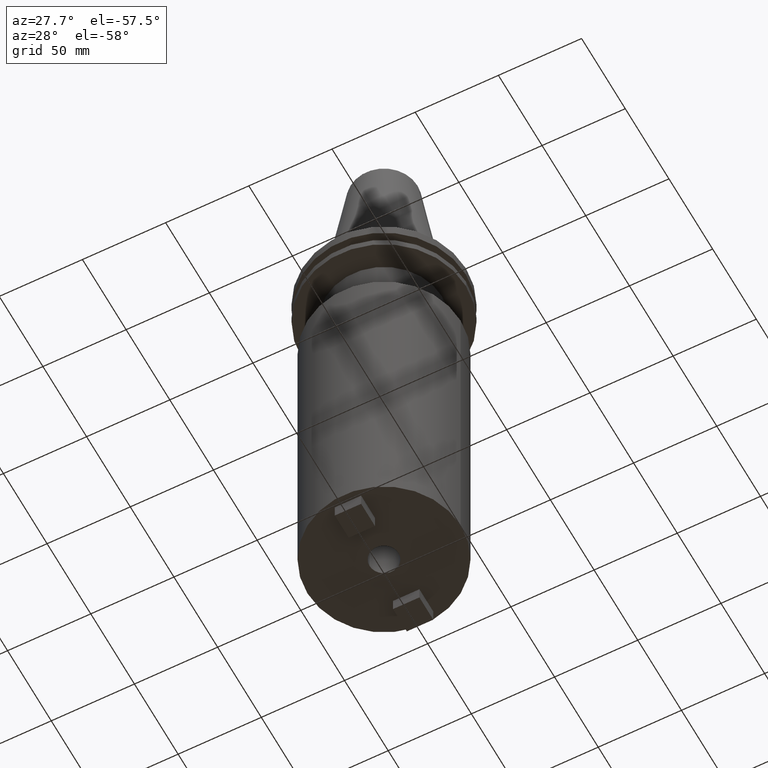
[diagram: clean part render]
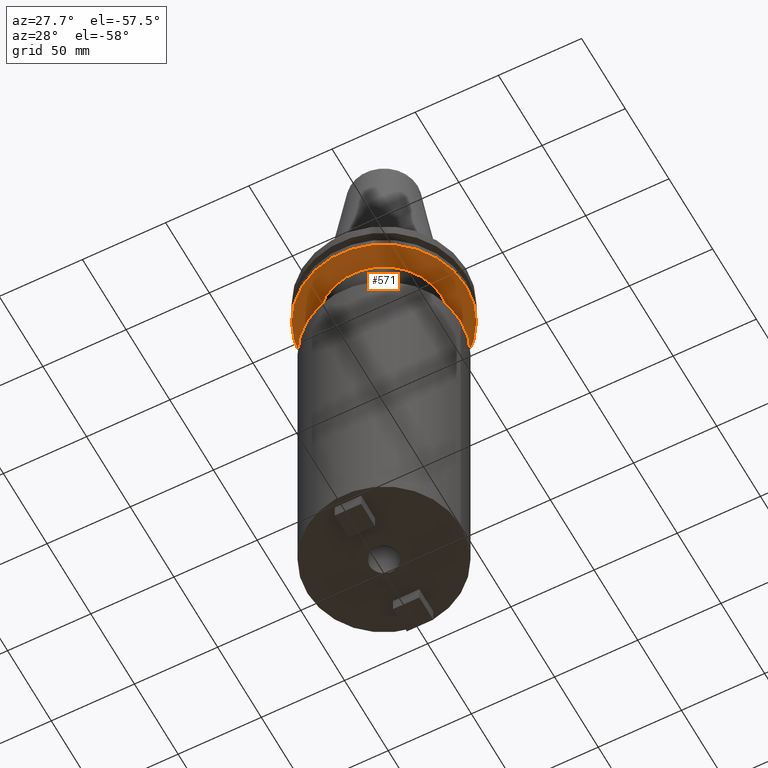
[diagram: same view with one face highlighted and labeled with its STEP entity id]
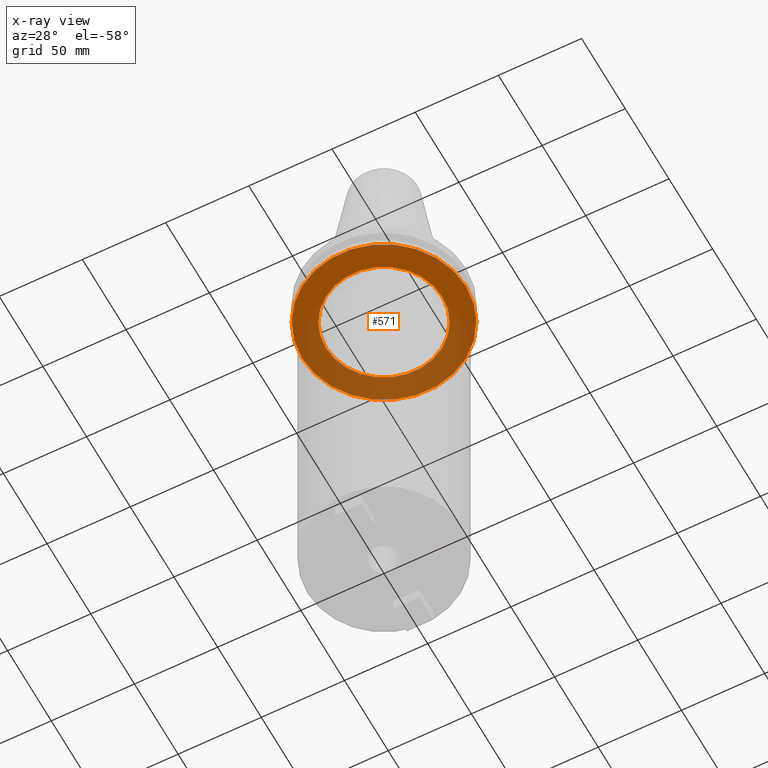
[diagram: x-ray of the same camera — body ghosted, the highlighted face saturated]
A machine part, auxiliary view. The second image highlights one B-rep face of the part: STEP entity #571.
The next image is the same camera in x-ray: the body ghosted, the highlighted face saturated — about 48% of this face is hidden behind the body in this view.
In plain terms, the highlighted planar face has unit normal (0, -0, 1).
Its self-contained STEP definition (entity closure, byte-faithful):
#6 = FACE_BOUND ( 'NONE', #499, .T. ) ;
#33 = AXIS2_PLACEMENT_3D ( 'NONE', #818, #307, #491 ) ;
#41 = DIRECTION ( 'NONE',  ( -0.000000000000000000, -0.000000000000000000, 1.000000000000000000 ) ) ;
#80 = DIRECTION ( 'NONE',  ( 0.000000000000000000, -0.000000000000000000, 1.000000000000000000 ) ) ;
#82 = VERTEX_POINT ( 'NONE', #614 ) ;
#163 = AXIS2_PLACEMENT_3D ( 'NONE', #524, #80, #785 ) ;
#170 = EDGE_CURVE ( 'NONE', #1007, #764, #534, .T. ) ;
#225 = CARTESIAN_POINT ( 'NONE',  ( 34.92499999999999716, 0.000000000000000000, -19.04999999999999716 ) ) ;
#296 = DIRECTION ( 'NONE',  ( 1.000000000000000000, 0.000000000000000000, 0.000000000000000000 ) ) ;
#307 = DIRECTION ( 'NONE',  ( -0.000000000000000000, -0.000000000000000000, 1.000000000000000000 ) ) ;
#350 = PLANE ( 'NONE',  #163 ) ;
#393 = DIRECTION ( 'NONE',  ( -0.000000000000000000, -0.000000000000000000, 1.000000000000000000 ) ) ;
#491 = DIRECTION ( 'NONE',  ( 1.000000000000000000, 0.000000000000000000, 0.000000000000000000 ) ) ;
#494 = ORIENTED_EDGE ( 'NONE', *, *, #719, .F. ) ;
#496 = DIRECTION ( 'NONE',  ( -0.000000000000000000, -0.000000000000000000, 1.000000000000000000 ) ) ;
#499 = EDGE_LOOP ( 'NONE', ( #634, #939 ) ) ;
#524 = CARTESIAN_POINT ( 'NONE',  ( 0.000000000000000000, 49.21499999999998920, -19.04999999999999716 ) ) ;
#534 = CIRCLE ( 'NONE', #730, 34.92499999999999716 ) ;
#564 = ORIENTED_EDGE ( 'NONE', *, *, #802, .F. ) ;
#571 = ADVANCED_FACE ( 'NONE', ( #779, #6 ), #350, .F. ) ;
#614 = CARTESIAN_POINT ( 'NONE',  ( 49.21499999999998920, 0.000000000000000000, -19.04999999999999716 ) ) ;
#634 = ORIENTED_EDGE ( 'NONE', *, *, #845, .T. ) ;
#635 = CARTESIAN_POINT ( 'NONE',  ( 0.000000000000000000, 0.000000000000000000, -19.04999999999999716 ) ) ;
#641 = CARTESIAN_POINT ( 'NONE',  ( -49.21499999999998920, 6.027099222003697037E-15, -19.04999999999999716 ) ) ;
#645 = CARTESIAN_POINT ( 'NONE',  ( 0.000000000000000000, 0.000000000000000000, -19.04999999999999716 ) ) ;
#719 = EDGE_CURVE ( 'NONE', #859, #82, #792, .T. ) ;
#726 = DIRECTION ( 'NONE',  ( 1.000000000000000000, 0.000000000000000000, 0.000000000000000000 ) ) ;
#730 = AXIS2_PLACEMENT_3D ( 'NONE', #645, #496, #726 ) ;
#754 = EDGE_LOOP ( 'NONE', ( #564, #494 ) ) ;
#764 = VERTEX_POINT ( 'NONE', #225 ) ;
#770 = AXIS2_PLACEMENT_3D ( 'NONE', #799, #41, #296 ) ;
#779 = FACE_OUTER_BOUND ( 'NONE', #754, .T. ) ;
#785 = DIRECTION ( 'NONE',  ( 1.000000000000000000, 0.000000000000000000, 0.000000000000000000 ) ) ;
#792 = CIRCLE ( 'NONE', #931, 49.21499999999998920 ) ;
#794 = CIRCLE ( 'NONE', #770, 49.21499999999998920 ) ;
#799 = CARTESIAN_POINT ( 'NONE',  ( 0.000000000000000000, 0.000000000000000000, -19.04999999999999716 ) ) ;
#802 = EDGE_CURVE ( 'NONE', #82, #859, #794, .T. ) ;
#818 = CARTESIAN_POINT ( 'NONE',  ( 0.000000000000000000, 0.000000000000000000, -19.04999999999999716 ) ) ;
#845 = EDGE_CURVE ( 'NONE', #764, #1007, #919, .T. ) ;
#859 = VERTEX_POINT ( 'NONE', #641 ) ;
#903 = DIRECTION ( 'NONE',  ( 1.000000000000000000, 0.000000000000000000, 0.000000000000000000 ) ) ;
#919 = CIRCLE ( 'NONE', #33, 34.92499999999999716 ) ;
#931 = AXIS2_PLACEMENT_3D ( 'NONE', #635, #393, #903 ) ;
#939 = ORIENTED_EDGE ( 'NONE', *, *, #170, .T. ) ;
#946 = CARTESIAN_POINT ( 'NONE',  ( -34.92499999999999716, 4.277078946022130887E-15, -19.04999999999999716 ) ) ;
#1007 = VERTEX_POINT ( 'NONE', #946 ) ;